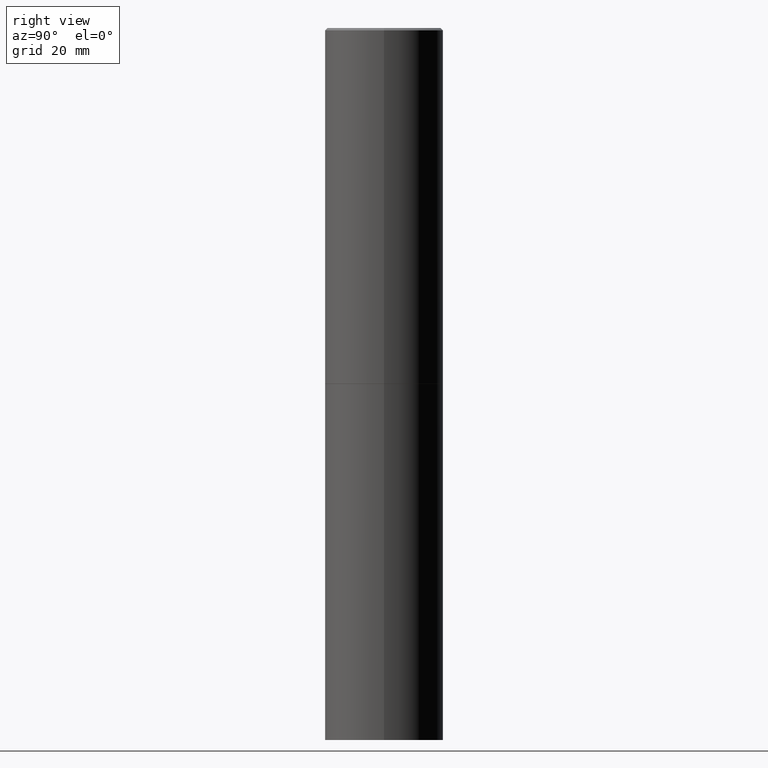
[diagram: clean part render]
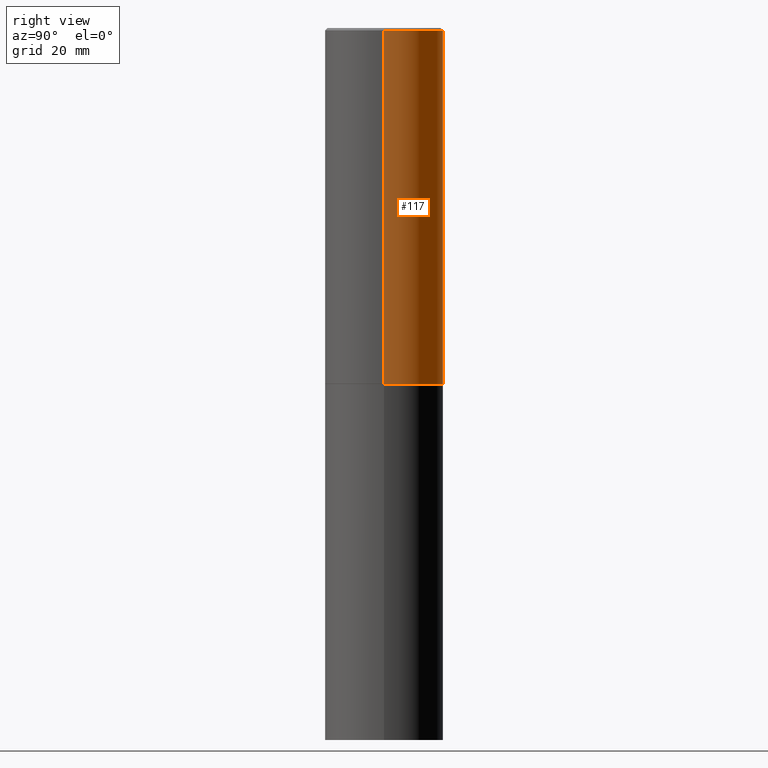
[diagram: same view with one face highlighted and labeled with its STEP entity id]
A machine part, right view. The second image highlights one B-rep face of the part: STEP entity #117.
In plain terms, the highlighted cylindrical surface (partial cylindrical patch) has radius 12.5006 mm, axis along (-0, 0, 1).
Its self-contained STEP definition (entity closure, byte-faithful):
#6 = DIRECTION ( 'NONE',  ( -2.445468806185136597E-29, 3.491481338843145583E-15, 1.000000000000000000 ) ) ;
#14 = VERTEX_POINT ( 'NONE', #31 ) ;
#24 = DIRECTION ( 'NONE',  ( -2.445468806185136877E-29, 3.491481338843145188E-15, 1.000000000000000000 ) ) ;
#28 = EDGE_CURVE ( 'NONE', #275, #14, #33, .T. ) ;
#31 = CARTESIAN_POINT ( 'NONE',  ( -0.4921499999999996988, 3.366835455046430506E-15, -0.02000000000000010797 ) ) ;
#33 = CIRCLE ( 'NONE', #286, 0.4921499999999996988 ) ;
#43 = ORIENTED_EDGE ( 'NONE', *, *, #52, .T. ) ;
#52 = EDGE_CURVE ( 'NONE', #146, #300, #101, .T. ) ;
#58 = CARTESIAN_POINT ( 'NONE',  ( 0.4921499999999998098, -3.436665081823294593E-15, 2.399810400207968762E-29 ) ) ;
#86 = DIRECTION ( 'NONE',  ( 1.000000000000000000, -6.982962677686265922E-15, 0.000000000000000000 ) ) ;
#87 = ORIENTED_EDGE ( 'NONE', *, *, #91, .T. ) ;
#91 = EDGE_CURVE ( 'NONE', #300, #14, #201, .T. ) ;
#101 = CIRCLE ( 'NONE', #277, 0.4921499999999999764 ) ;
#105 = DIRECTION ( 'NONE',  ( -2.445468806185136597E-29, 3.491481338843145583E-15, 1.000000000000000000 ) ) ;
#111 = DIRECTION ( 'NONE',  ( -2.445468806185136877E-29, 3.491481338843145188E-15, 1.000000000000000000 ) ) ;
#112 = ORIENTED_EDGE ( 'NONE', *, *, #28, .F. ) ;
#117 = ADVANCED_FACE ( 'NONE', ( #133 ), #245, .T. ) ;
#123 = DIRECTION ( 'NONE',  ( -2.445468806185136597E-29, 3.491481338843145583E-15, 1.000000000000000000 ) ) ;
#133 = FACE_OUTER_BOUND ( 'NONE', #264, .T. ) ;
#143 = CARTESIAN_POINT ( 'NONE',  ( 0.4921499999999996988, -3.446223716380120377E-15, -0.02000000000000010797 ) ) ;
#146 = VERTEX_POINT ( 'NONE', #249 ) ;
#163 = DIRECTION ( 'NONE',  ( 1.000000000000000000, -6.982962677686265922E-15, 4.876176775795935793E-29 ) ) ;
#192 = VECTOR ( 'NONE', #24, 39.37007874015748143 ) ;
#201 = LINE ( 'NONE', #360, #192 ) ;
#212 = AXIS2_PLACEMENT_3D ( 'NONE', #359, #105, #163 ) ;
#223 = DIRECTION ( 'NONE',  ( 1.000000000000000000, -6.982962677686265922E-15, 0.000000000000000000 ) ) ;
#230 = EDGE_CURVE ( 'NONE', #146, #275, #252, .T. ) ;
#245 = CYLINDRICAL_SURFACE ( 'NONE', #212, 0.4921499999999998098 ) ;
#249 = CARTESIAN_POINT ( 'NONE',  ( 0.4921499999999999764, -1.374247054968660936E-14, -2.951700000000000212 ) ) ;
#252 = LINE ( 'NONE', #58, #315 ) ;
#261 = CARTESIAN_POINT ( 'NONE',  ( 4.890937612370299433E-31, -6.982962677686328587E-17, -0.02000000000000010797 ) ) ;
#264 = EDGE_LOOP ( 'NONE', ( #43, #87, #112, #291 ) ) ;
#266 = CARTESIAN_POINT ( 'NONE',  ( 7.218290275216666916E-29, -1.030580546786331359E-14, -2.951700000000000212 ) ) ;
#275 = VERTEX_POINT ( 'NONE', #143 ) ;
#277 = AXIS2_PLACEMENT_3D ( 'NONE', #266, #123, #86 ) ;
#286 = AXIS2_PLACEMENT_3D ( 'NONE', #261, #6, #223 ) ;
#291 = ORIENTED_EDGE ( 'NONE', *, *, #230, .F. ) ;
#300 = VERTEX_POINT ( 'NONE', #316 ) ;
#315 = VECTOR ( 'NONE', #111, 39.37007874015748143 ) ;
#316 = CARTESIAN_POINT ( 'NONE',  ( -0.4921499999999999764, -1.690881473276754954E-15, -2.951700000000000212 ) ) ;
#359 = CARTESIAN_POINT ( 'NONE',  ( 0.000000000000000000, 0.000000000000000000, 0.000000000000000000 ) ) ;
#360 = CARTESIAN_POINT ( 'NONE',  ( -0.4921499999999998098, 3.496936074043331714E-15, -2.420853904668950949E-29 ) ) ;